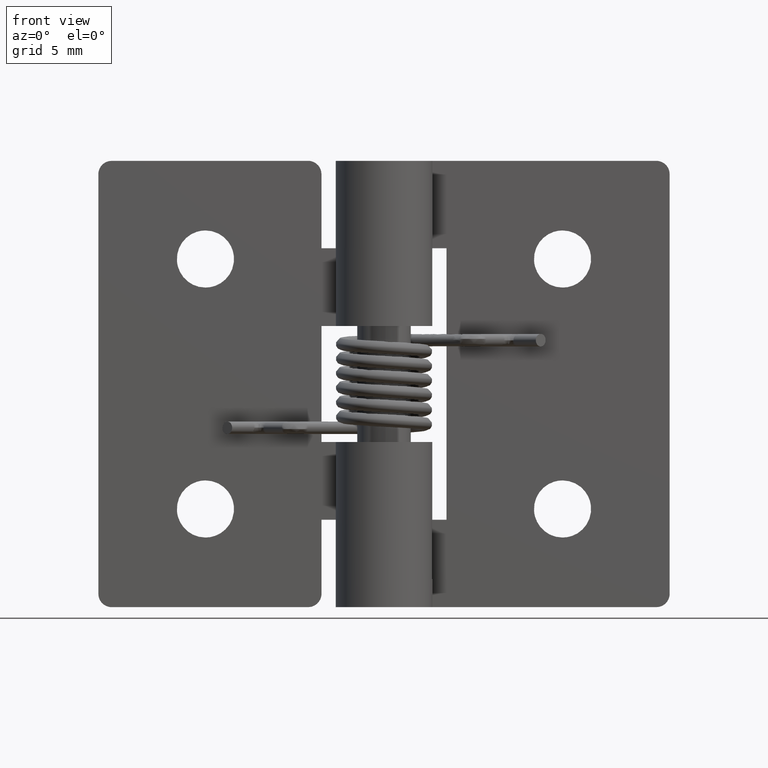
[diagram: clean part render]
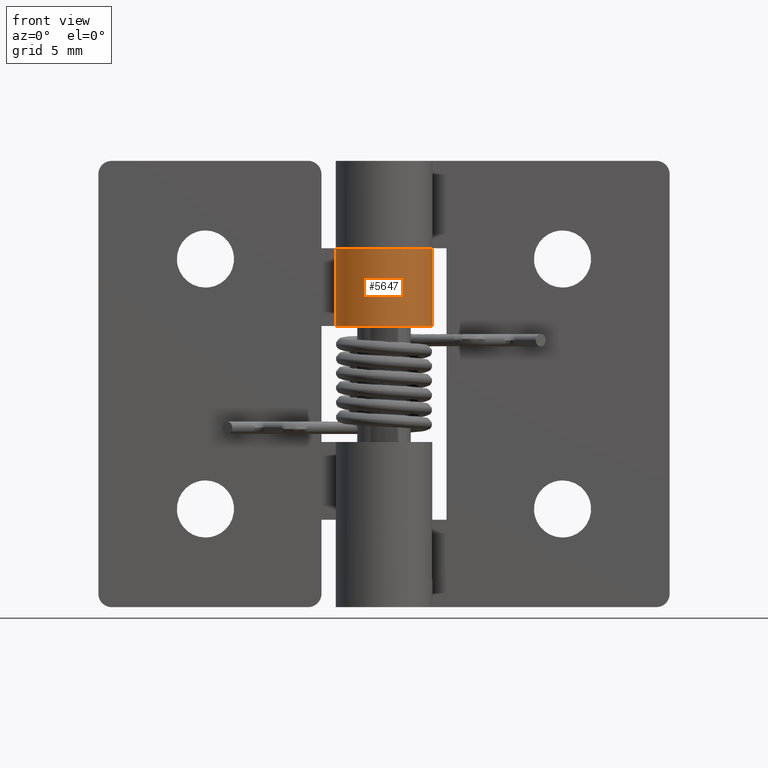
[diagram: same view with one face highlighted and labeled with its STEP entity id]
A machine part, front view. The second image highlights one B-rep face of the part: STEP entity #5647.
In plain terms, the highlighted face is a freeform B-spline surface patch.
Its self-contained STEP definition (entity closure, byte-faithful):
#5207=CARTESIAN_POINT('',(0.0,2.700005000000000,15.749992000000001));
#5208=VERTEX_POINT('',#5207);
#5209=CARTESIAN_POINT('',(-2.277612612579390,1.450002685185184,15.749992000000050));
#5210=VERTEX_POINT('',#5209);
#5211=CARTESIAN_POINT('',(0.0,2.700005000000000,15.749992000000001));
#5212=CARTESIAN_POINT('',(2.095113857326624,2.700005000000000,15.749992000000045));
#5213=CARTESIAN_POINT('',(2.615419935121488,0.670526332811855,15.749992000000050));
#5214=CARTESIAN_POINT('',(3.135726012916352,-1.358952334376290,15.749992000000045));
#5215=CARTESIAN_POINT('',(1.299040511302780,-2.366964458968325,15.749992000000050));
#5216=CARTESIAN_POINT('',(-0.537644990310794,-3.374976583560359,15.749992000000045));
#5217=CARTESIAN_POINT('',(-1.970205670542061,-1.846162673165317,15.749992000000050));
#5218=CARTESIAN_POINT('',(-3.402766350773328,-0.317348762770276,15.749992000000045));
#5219=CARTESIAN_POINT('',(-2.277612612579397,1.450002685185188,15.749992000000050));
#5227=(BOUNDED_CURVE()B_SPLINE_CURVE(2,(#5211,#5212,#5213,#5214,#5215,#5216,#5217,#5218,#5219),.UNSPECIFIED.,.F.,.U.)B_SPLINE_CURVE_WITH_KNOTS((3,2,2,2,3),(0.0,0.250000000000000,0.500000000000000,0.750000000000000,1.0),.UNSPECIFIED.)CURVE()GEOMETRIC_REPRESENTATION_ITEM()RATIONAL_B_SPLINE_CURVE((1.0,0.790045133626194,1.0,0.790045133626194,1.0,0.790045133626194,1.0,0.790045133626194,1.0))REPRESENTATION_ITEM(''));
#5228=EDGE_CURVE('',#5208,#5210,#5227,.T.);
#5333=CARTESIAN_POINT('',(0.0,2.700005000000000,20.099997999999999));
#5334=VERTEX_POINT('',#5333);
#5369=CARTESIAN_POINT('',(-2.277612612579390,1.450002685185184,20.099997999999950));
#5370=VERTEX_POINT('',#5369);
#5376=CARTESIAN_POINT('',(0.0,2.700005000000000,20.099997999999999));
#5377=CARTESIAN_POINT('',(2.095113857326624,2.700005000000000,20.099997999999950));
#5378=CARTESIAN_POINT('',(2.615419935121488,0.670526332811855,20.099997999999950));
#5379=CARTESIAN_POINT('',(3.135726012916352,-1.358952334376290,20.099997999999950));
#5380=CARTESIAN_POINT('',(1.299040511302780,-2.366964458968325,20.099997999999950));
#5381=CARTESIAN_POINT('',(-0.537644990310794,-3.374976583560359,20.099997999999950));
#5382=CARTESIAN_POINT('',(-1.970205670542061,-1.846162673165317,20.099997999999950));
#5383=CARTESIAN_POINT('',(-3.402766350773328,-0.317348762770276,20.099997999999950));
#5384=CARTESIAN_POINT('',(-2.277612612579397,1.450002685185188,20.099997999999950));
#5392=(BOUNDED_CURVE()B_SPLINE_CURVE(2,(#5376,#5377,#5378,#5379,#5380,#5381,#5382,#5383,#5384),.UNSPECIFIED.,.F.,.U.)B_SPLINE_CURVE_WITH_KNOTS((3,2,2,2,3),(0.0,0.250000000000000,0.500000000000000,0.750000000000000,1.0),.UNSPECIFIED.)CURVE()GEOMETRIC_REPRESENTATION_ITEM()RATIONAL_B_SPLINE_CURVE((1.0,0.790045133626194,1.0,0.790045133626194,1.0,0.790045133626194,1.0,0.790045133626194,1.0))REPRESENTATION_ITEM(''));
#5393=EDGE_CURVE('',#5334,#5370,#5392,.T.);
#5572=CARTESIAN_POINT('',(-2.277612612579390,1.450002685185184,15.749992000000050));
#5573=CARTESIAN_POINT('',(-2.277612612579390,1.450002685185184,20.099997999999950));
#5574=QUASI_UNIFORM_CURVE('',1,(#5572,#5573),.UNSPECIFIED.,.F.,.U.);
#5575=EDGE_CURVE('',#5210,#5370,#5574,.T.);
#5615=CARTESIAN_POINT('',(-0.023561689478285,2.699902192082877,15.641241850000000));
#5616=CARTESIAN_POINT('',(-0.023561689478285,2.699902192082877,20.211466903750001));
#5617=CARTESIAN_POINT('',(3.310539850447610,2.728998455422773,15.641241850000000));
#5618=CARTESIAN_POINT('',(3.310539850447610,2.728998455422773,20.211466903749997));
#5619=CARTESIAN_POINT('',(2.645801602099762,-0.538294419766106,15.641241850000000));
#5620=CARTESIAN_POINT('',(2.645801602099762,-0.538294419766106,20.211466903750001));
#5621=CARTESIAN_POINT('',(1.981063353751912,-3.805587294954984,15.641241850000000));
#5622=CARTESIAN_POINT('',(1.981063353751912,-3.805587294954984,20.211466903749997));
#5623=CARTESIAN_POINT('',(-1.076624479843510,-2.476066786140206,15.641241850000000));
#5624=CARTESIAN_POINT('',(-1.076624479843510,-2.476066786140206,20.211466903750001));
#5625=CARTESIAN_POINT('',(-4.134312313438931,-1.146546277325427,15.641241850000000));
#5626=CARTESIAN_POINT('',(-4.134312313438931,-1.146546277325427,20.211466903749997));
#5627=CARTESIAN_POINT('',(-2.198115970139654,1.567900883934315,15.641241850000000));
#5628=CARTESIAN_POINT('',(-2.198115970139654,1.567900883934315,20.211466903750001));
#5636=(BOUNDED_SURFACE()B_SPLINE_SURFACE(1,2,((#5615,#5617,#5619,#5621,#5623,#5625,#5627),(#5616,#5618,#5620,#5622,#5624,#5626,#5628)),.UNSPECIFIED.,.F.,.F.,.U.)B_SPLINE_SURFACE_WITH_KNOTS((2,2),(3,2,2,3),(0.0,4.570225053750001),(0.0,5.151345292650782,10.302690585301560,15.454035877952350),.UNSPECIFIED.)GEOMETRIC_REPRESENTATION_ITEM()RATIONAL_B_SPLINE_SURFACE(((1.0,0.629320391049838,1.0,0.629320391049838,1.0,0.629320391049838,1.0),(1.0,0.629320391049838,1.0,0.629320391049838,1.0,0.629320391049838,1.0)))REPRESENTATION_ITEM('')SURFACE());
#5637=ORIENTED_EDGE('',*,*,#5228,.F.);
#5638=CARTESIAN_POINT('',(0.0,2.700005000000000,15.749992000000001));
#5639=CARTESIAN_POINT('',(0.0,2.700005000000000,20.099997999999999));
#5640=QUASI_UNIFORM_CURVE('',1,(#5638,#5639),.UNSPECIFIED.,.F.,.U.);
#5641=EDGE_CURVE('',#5208,#5334,#5640,.T.);
#5642=ORIENTED_EDGE('',*,*,#5641,.T.);
#5643=ORIENTED_EDGE('',*,*,#5393,.T.);
#5644=ORIENTED_EDGE('',*,*,#5575,.F.);
#5645=EDGE_LOOP('',(#5637,#5642,#5643,#5644));
#5646=FACE_OUTER_BOUND('',#5645,.T.);
#5647=ADVANCED_FACE('',(#5646),#5636,.T.);